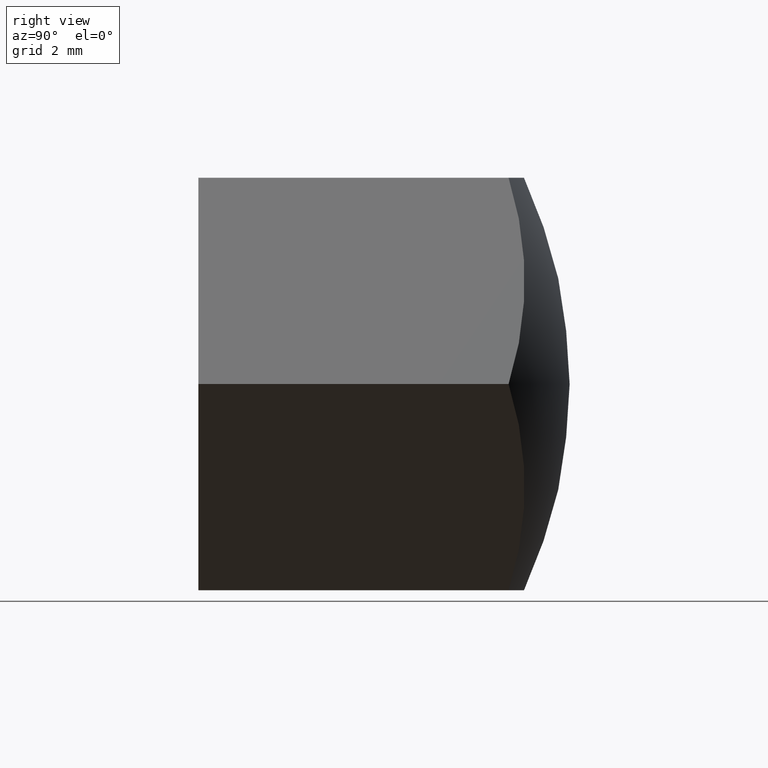
[diagram: clean part render]
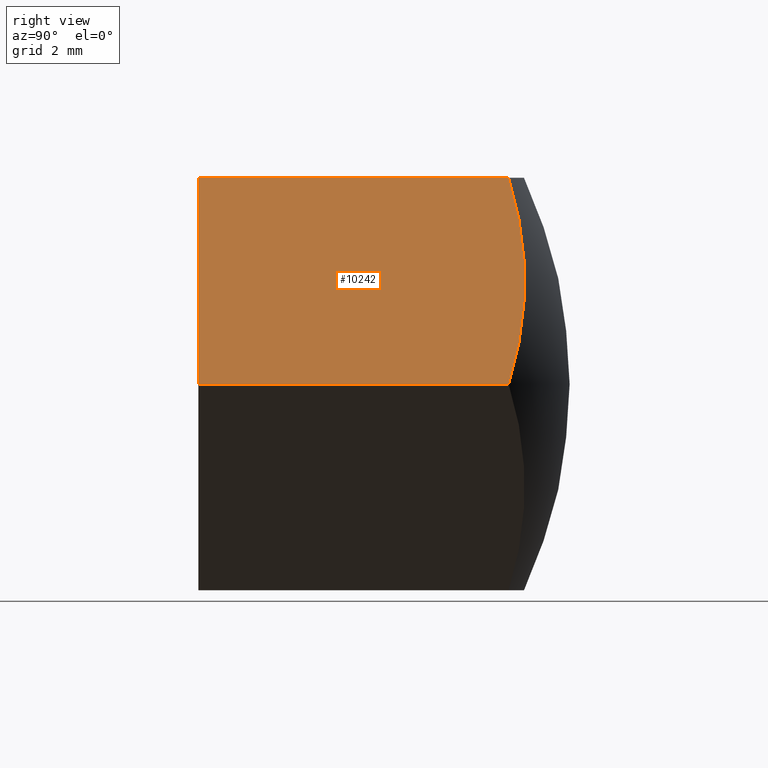
[diagram: same view with one face highlighted and labeled with its STEP entity id]
A machine part, right view. The second image highlights one B-rep face of the part: STEP entity #10242.
In plain terms, the highlighted planar face has unit normal (-0.866, 0, -0.5).
Its self-contained STEP definition (entity closure, byte-faithful):
#252 = LINE ( 'NONE', #3170, #1316 ) ;
#319 = EDGE_CURVE ( 'NONE', #7372, #11640, #252, .T. ) ;
#366 = ORIENTED_EDGE ( 'NONE', *, *, #4798, .F. ) ;
#539 = DIRECTION ( 'NONE',  ( -0.5000000000000001110, 0.000000000000000000, 0.8660254037844385966 ) ) ;
#561 = EDGE_LOOP ( 'NONE', ( #366, #10940, #13919, #9982 ) ) ;
#936 = LINE ( 'NONE', #9867, #5777 ) ;
#1316 = VECTOR ( 'NONE', #8919, 1000.000000000000000 ) ;
#2371 = CIRCLE ( 'NONE', #5110, 10.90871211463571377 ) ;
#2596 = PLANE ( 'NONE',  #4295 ) ;
#3170 = CARTESIAN_POINT ( 'NONE',  ( 2.886751345948132208, 0.000000000000000000, 4.999999999999995559 ) ) ;
#3989 = DIRECTION ( 'NONE',  ( -0.5000000000000001110, -1.788995703585930209E-15, 0.8660254037844385966 ) ) ;
#4295 = AXIS2_PLACEMENT_3D ( 'NONE', #12692, #6075, #539 ) ;
#4584 = LINE ( 'NONE', #5999, #4922 ) ;
#4798 = EDGE_CURVE ( 'NONE', #9825, #11640, #936, .T. ) ;
#4922 = VECTOR ( 'NONE', #9333, 1000.000000000000000 ) ;
#5077 = CARTESIAN_POINT ( 'NONE',  ( 5.773502691896258199, 7.519822558706331428, 2.168404344971009262E-15 ) ) ;
#5110 = AXIS2_PLACEMENT_3D ( 'NONE', #10469, #10620, #3989 ) ;
#5777 = VECTOR ( 'NONE', #8905, 1000.000000000000000 ) ;
#5896 = CARTESIAN_POINT ( 'NONE',  ( 5.773502691896257311, 0.000000000000000000, 3.478469870610631907E-15 ) ) ;
#5999 = CARTESIAN_POINT ( 'NONE',  ( 2.886751345948132208, 9.000000000000000000, 4.999999999999995559 ) ) ;
#6075 = DIRECTION ( 'NONE',  ( -0.8660254037844385966, 0.000000000000000000, -0.5000000000000001110 ) ) ;
#7372 = VERTEX_POINT ( 'NONE', #13898 ) ;
#8905 = DIRECTION ( 'NONE',  ( -0.000000000000000000, -1.000000000000000000, -0.000000000000000000 ) ) ;
#8919 = DIRECTION ( 'NONE',  ( 0.5000000000000001110, 0.000000000000000000, -0.8660254037844385966 ) ) ;
#9045 = EDGE_CURVE ( 'NONE', #9825, #11153, #2371, .T. ) ;
#9333 = DIRECTION ( 'NONE',  ( -0.000000000000000000, -1.000000000000000000, -0.000000000000000000 ) ) ;
#9825 = VERTEX_POINT ( 'NONE', #5077 ) ;
#9867 = CARTESIAN_POINT ( 'NONE',  ( 5.773502691896257311, 9.000000000000000000, 3.478469870610631907E-15 ) ) ;
#9982 = ORIENTED_EDGE ( 'NONE', *, *, #319, .T. ) ;
#10242 = ADVANCED_FACE ( 'NONE', ( #14105 ), #2596, .F. ) ;
#10469 = CARTESIAN_POINT ( 'NONE',  ( 4.330127018922194537, -3.000000000000000888, 2.500000000000000888 ) ) ;
#10620 = DIRECTION ( 'NONE',  ( 0.8660254037844385966, -0.000000000000000000, 0.5000000000000001110 ) ) ;
#10940 = ORIENTED_EDGE ( 'NONE', *, *, #9045, .T. ) ;
#11153 = VERTEX_POINT ( 'NONE', #13949 ) ;
#11640 = VERTEX_POINT ( 'NONE', #5896 ) ;
#11697 = EDGE_CURVE ( 'NONE', #11153, #7372, #4584, .T. ) ;
#12692 = CARTESIAN_POINT ( 'NONE',  ( 2.886751345948132208, 9.000000000000000000, 4.999999999999995559 ) ) ;
#13898 = CARTESIAN_POINT ( 'NONE',  ( 2.886751345948132208, 0.000000000000000000, 4.999999999999995559 ) ) ;
#13919 = ORIENTED_EDGE ( 'NONE', *, *, #11697, .T. ) ;
#13949 = CARTESIAN_POINT ( 'NONE',  ( 2.886751345948134873, 7.519822558706331428, 4.999999999999996447 ) ) ;
#14105 = FACE_OUTER_BOUND ( 'NONE', #561, .T. ) ;